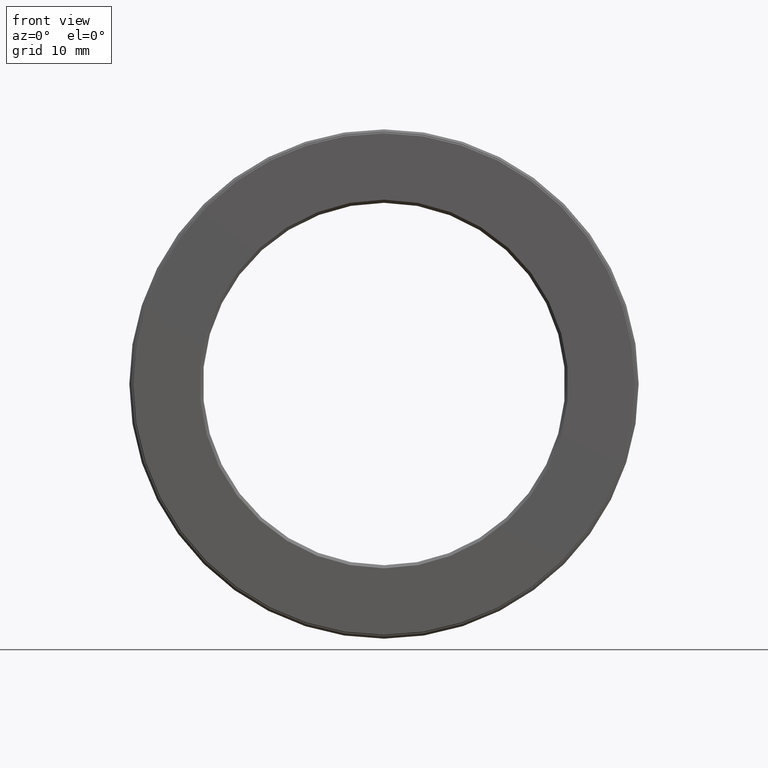
[diagram: clean part render]
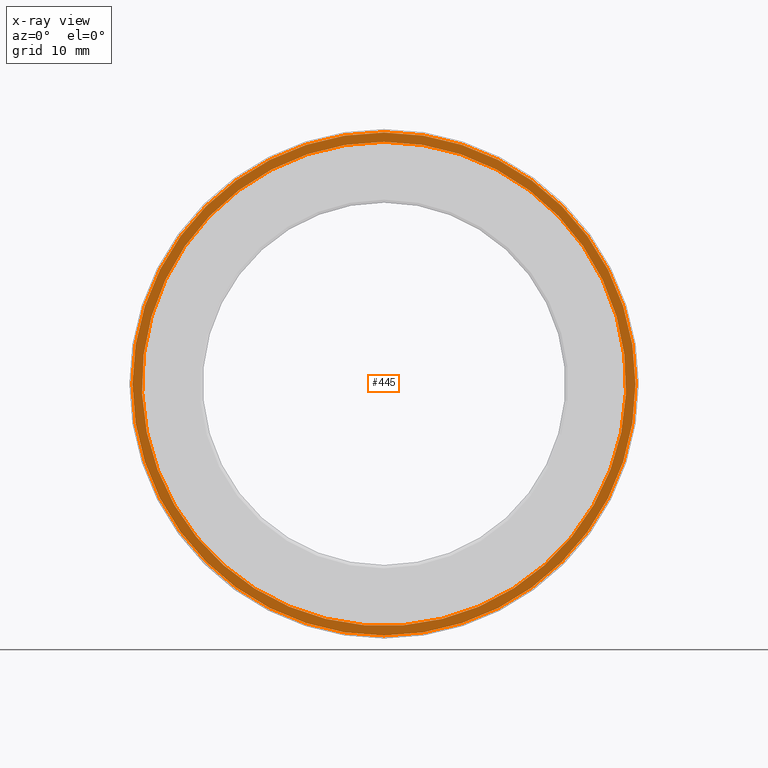
[diagram: x-ray — body ghosted, one internal face saturated and labeled with its STEP entity id]
A machine part, front view, then the same camera in x-ray: the body is ghosted and one INTERNAL B-rep face — a face not visible from any outside direction — is saturated and labeled: STEP entity #445.
In plain terms, the highlighted planar face has unit normal (-0, 1, 0).
Its self-contained STEP definition (entity closure, byte-faithful):
#12 = ORIENTED_EDGE ( 'NONE', *, *, #518, .T. ) ;
#14 = FACE_OUTER_BOUND ( 'NONE', #503, .T. ) ;
#26 = CIRCLE ( 'NONE', #317, 1.605000000000000000 ) ;
#140 = ORIENTED_EDGE ( 'NONE', *, *, #546, .F. ) ;
#155 = EDGE_LOOP ( 'NONE', ( #12 ) ) ;
#160 = AXIS2_PLACEMENT_3D ( 'NONE', #389, #253, #595 ) ;
#164 = DIRECTION ( 'NONE',  ( 0.0000000000000000000, 0.0000000000000000000, 1.000000000000000000 ) ) ;
#174 = CARTESIAN_POINT ( 'NONE',  ( 0.0000000000000000000, 0.7774999999999998600, 1.605000000000000000 ) ) ;
#246 = DIRECTION ( 'NONE',  ( 0.0000000000000000000, 0.0000000000000000000, 1.000000000000000000 ) ) ;
#253 = DIRECTION ( 'NONE',  ( -0.0000000000000000000, 1.000000000000000000, -0.0000000000000000000 ) ) ;
#288 = PLANE ( 'NONE',  #587 ) ;
#317 = AXIS2_PLACEMENT_3D ( 'NONE', #334, #527, #164 ) ;
#330 = DIRECTION ( 'NONE',  ( -0.0000000000000000000, 1.000000000000000000, 0.0000000000000000000 ) ) ;
#334 = CARTESIAN_POINT ( 'NONE',  ( 0.0000000000000000000, 0.7774999999999998600, 0.0000000000000000000 ) ) ;
#336 = CARTESIAN_POINT ( 'NONE',  ( 0.0000000000000000000, 0.7774999999999998600, 0.0000000000000000000 ) ) ;
#368 = FACE_BOUND ( 'NONE', #155, .T. ) ;
#378 = CIRCLE ( 'NONE', #160, 1.545000000000000200 ) ;
#389 = CARTESIAN_POINT ( 'NONE',  ( 0.0000000000000000000, 0.7774999999999998600, 0.0000000000000000000 ) ) ;
#445 = ADVANCED_FACE ( 'NONE', ( #14, #368 ), #288, .F. ) ;
#471 = VERTEX_POINT ( 'NONE', #174 ) ;
#503 = EDGE_LOOP ( 'NONE', ( #140 ) ) ;
#508 = VERTEX_POINT ( 'NONE', #547 ) ;
#518 = EDGE_CURVE ( 'NONE', #508, #508, #378, .T. ) ;
#527 = DIRECTION ( 'NONE',  ( -0.0000000000000000000, 1.000000000000000000, -0.0000000000000000000 ) ) ;
#546 = EDGE_CURVE ( 'NONE', #471, #471, #26, .T. ) ;
#547 = CARTESIAN_POINT ( 'NONE',  ( 0.0000000000000000000, 0.7774999999999998600, 1.545000000000000200 ) ) ;
#587 = AXIS2_PLACEMENT_3D ( 'NONE', #336, #330, #246 ) ;
#595 = DIRECTION ( 'NONE',  ( 0.0000000000000000000, 0.0000000000000000000, 1.000000000000000000 ) ) ;